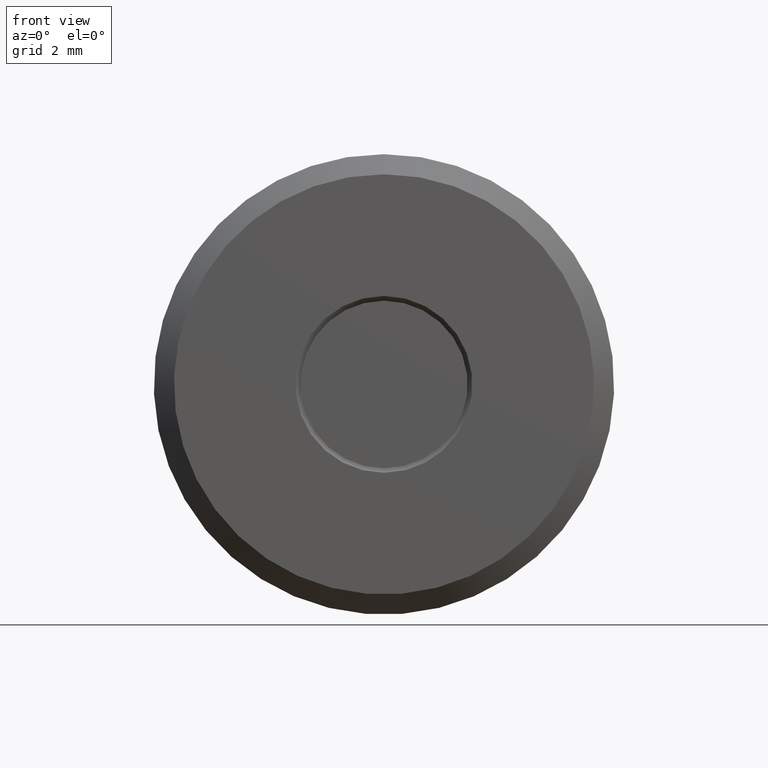
[diagram: clean part render]
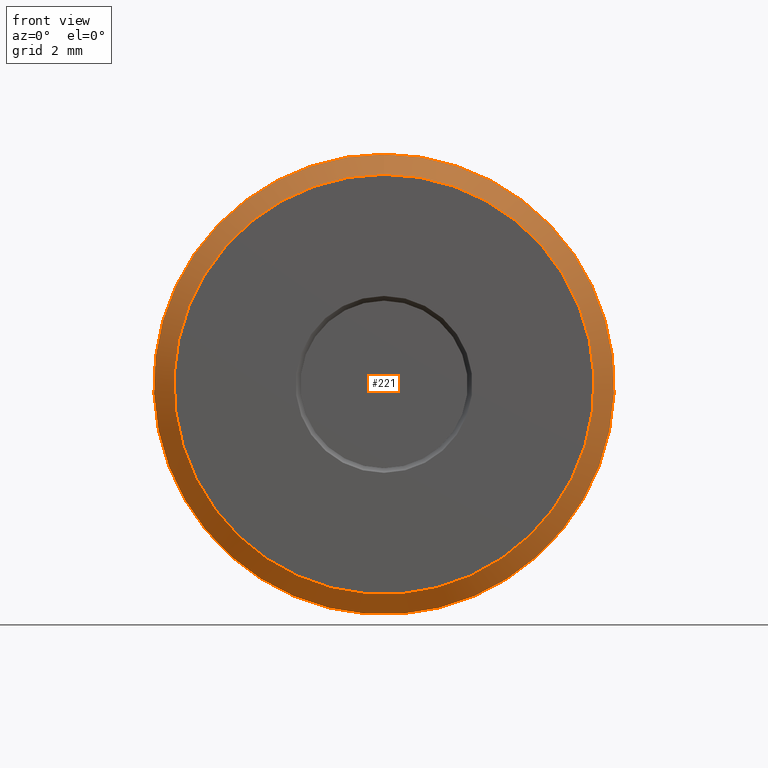
[diagram: same view with one face highlighted and labeled with its STEP entity id]
A machine part, front view. The second image highlights one B-rep face of the part: STEP entity #221.
In plain terms, the highlighted conical surface has half-angle 45 deg.
Its self-contained STEP definition (entity closure, byte-faithful):
#1 = AXIS2_PLACEMENT_3D ( 'NONE', #110, #106, #127 ) ;
#13 = CIRCLE ( 'NONE', #1, 0.3437500000000000000 ) ;
#14 = EDGE_CURVE ( 'NONE', #460, #460, #13, .T. ) ;
#38 = CARTESIAN_POINT ( 'NONE',  ( 0.0000000000000000000, 0.03000000000000024200, 0.0000000000000000000 ) ) ;
#99 = DIRECTION ( 'NONE',  ( -0.0000000000000000000, 1.000000000000000000, -0.0000000000000000000 ) ) ;
#106 = DIRECTION ( 'NONE',  ( -0.0000000000000000000, 1.000000000000000000, -0.0000000000000000000 ) ) ;
#110 = CARTESIAN_POINT ( 'NONE',  ( 0.0000000000000000000, 0.03000000000000024200, 0.0000000000000000000 ) ) ;
#111 = FACE_OUTER_BOUND ( 'NONE', #419, .T. ) ;
#127 = DIRECTION ( 'NONE',  ( 0.0000000000000000000, 0.0000000000000000000, 1.000000000000000000 ) ) ;
#146 = EDGE_CURVE ( 'NONE', #246, #246, #414, .T. ) ;
#195 = DIRECTION ( 'NONE',  ( 0.0000000000000000000, 0.0000000000000000000, 1.000000000000000000 ) ) ;
#200 = FACE_BOUND ( 'NONE', #536, .T. ) ;
#215 = AXIS2_PLACEMENT_3D ( 'NONE', #218, #231, #227 ) ;
#218 = CARTESIAN_POINT ( 'NONE',  ( 0.0000000000000000000, -5.740417299497304900E-017, 0.0000000000000000000 ) ) ;
#221 = ADVANCED_FACE ( 'NONE', ( #200, #111 ), #482, .T. ) ;
#227 = DIRECTION ( 'NONE',  ( 0.0000000000000000000, 0.0000000000000000000, 1.000000000000000000 ) ) ;
#231 = DIRECTION ( 'NONE',  ( -0.0000000000000000000, 1.000000000000000000, -0.0000000000000000000 ) ) ;
#246 = VERTEX_POINT ( 'NONE', #440 ) ;
#267 = ORIENTED_EDGE ( 'NONE', *, *, #146, .T. ) ;
#299 = ORIENTED_EDGE ( 'NONE', *, *, #14, .F. ) ;
#392 = AXIS2_PLACEMENT_3D ( 'NONE', #38, #99, #195 ) ;
#414 = CIRCLE ( 'NONE', #215, 0.3137500000000000300 ) ;
#419 = EDGE_LOOP ( 'NONE', ( #299 ) ) ;
#440 = CARTESIAN_POINT ( 'NONE',  ( 0.0000000000000000000, -5.740417299497304900E-017, 0.3137500000000000300 ) ) ;
#460 = VERTEX_POINT ( 'NONE', #483 ) ;
#482 = CONICAL_SURFACE ( 'NONE', #392, 0.3437500000000000000, 0.7853981633974425100 ) ;
#483 = CARTESIAN_POINT ( 'NONE',  ( 0.0000000000000000000, 0.03000000000000024200, 0.3437500000000000000 ) ) ;
#536 = EDGE_LOOP ( 'NONE', ( #267 ) ) ;